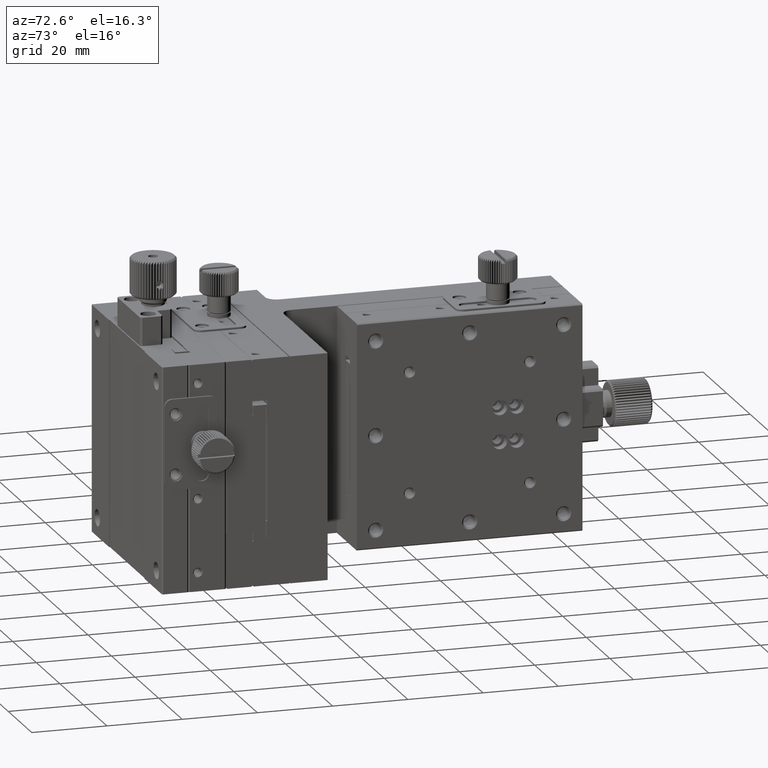
[diagram: clean part render]
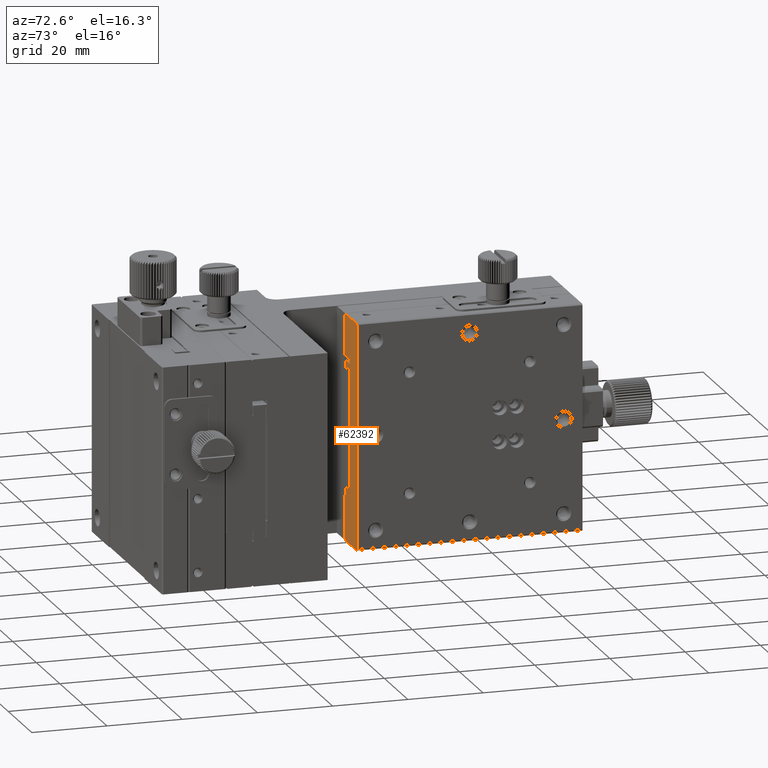
[diagram: same view with one face highlighted and labeled with its STEP entity id]
A machine part, auxiliary view. The second image highlights one B-rep face of the part: STEP entity #62392.
In plain terms, the highlighted planar face has unit normal (0, -1, 0).
Its self-contained STEP definition (entity closure, byte-faithful):
#34 = EDGE_CURVE ( 'NONE', #60580, #25279, #12182, .T. ) ;
#1041 = LINE ( 'NONE', #1652, #18351 ) ;
#1652 = CARTESIAN_POINT ( 'NONE',  ( 26.99999999999999645, 25.00000000000000711, 7.347880794884119933E-15 ) ) ;
#1874 = VECTOR ( 'NONE', #46125, 1000.000000000000000 ) ;
#2432 = DIRECTION ( 'NONE',  ( 1.227396053628219999E-16, 0.000000000000000000, 1.000000000000000000 ) ) ;
#2463 = VECTOR ( 'NONE', #2432, 1000.000000000000000 ) ;
#2490 = LINE ( 'NONE', #60452, #1874 ) ;
#2585 = LINE ( 'NONE', #17292, #58085 ) ;
#2967 = CARTESIAN_POINT ( 'NONE',  ( 37.00000000000000000, 25.00000000000000711, 7.347880794884119933E-15 ) ) ;
#3481 = CARTESIAN_POINT ( 'NONE',  ( 26.99999999999999645, 25.00000000000000711, -59.69999999999999574 ) ) ;
#3935 = ORIENTED_EDGE ( 'NONE', *, *, #18603, .T. ) ;
#3995 = VECTOR ( 'NONE', #8271, 999.9999999999998863 ) ;
#4728 = LINE ( 'NONE', #3481, #3995 ) ;
#4748 = CARTESIAN_POINT ( 'NONE',  ( 30.99999999999999289, 25.00000000000000711, -43.00000000000000000 ) ) ;
#4801 = ORIENTED_EDGE ( 'NONE', *, *, #42267, .T. ) ;
#4809 = ORIENTED_EDGE ( 'NONE', *, *, #62161, .T. ) ;
#4855 = LINE ( 'NONE', #24309, #28565 ) ;
#4996 = VECTOR ( 'NONE', #59641, 1000.000000000000000 ) ;
#6149 = CARTESIAN_POINT ( 'NONE',  ( 26.99999999999999645, 25.00000000000000711, -47.99999999999999289 ) ) ;
#7333 = DIRECTION ( 'NONE',  ( -0.7071067811865470176, -0.000000000000000000, 0.7071067811865480168 ) ) ;
#7435 = DIRECTION ( 'NONE',  ( 0.8659960399471574588, 0.000000000000000000, 0.5000508562094871934 ) ) ;
#7503 = CARTESIAN_POINT ( 'NONE',  ( 26.99999999999999645, 25.00000000000000711, -59.69999999999999574 ) ) ;
#7559 = CARTESIAN_POINT ( 'NONE',  ( 26.99999999999999645, 25.00000000000000711, 7.347880794884119933E-15 ) ) ;
#7769 = CARTESIAN_POINT ( 'NONE',  ( 30.80000000000000426, 25.00000000000000711, -12.80599999999998673 ) ) ;
#8271 = DIRECTION ( 'NONE',  ( 0.7071067811865431318, -0.000000000000000000, -0.7071067811865520136 ) ) ;
#8339 = ORIENTED_EDGE ( 'NONE', *, *, #34378, .T. ) ;
#8505 = VECTOR ( 'NONE', #49456, 1000.000000000000000 ) ;
#8549 = EDGE_LOOP ( 'NONE', ( #28143, #4801, #54453, #53428, #39034, #58429, #16312, #4809, #47194, #3935, #16232, #12271, #43871, #39023, #59701, #62694, #29594, #22457, #53627, #17290, #39284, #8339 ) ) ;
#8647 = VECTOR ( 'NONE', #44059, 1000.000000000000000 ) ;
#9627 = CARTESIAN_POINT ( 'NONE',  ( 27.29999999999999716, 25.00000000000000711, -59.99999999999999289 ) ) ;
#9825 = VERTEX_POINT ( 'NONE', #7769 ) ;
#9974 = DIRECTION ( 'NONE',  ( -0.7071067811865480168, -0.000000000000000000, -0.7071067811865470176 ) ) ;
#10093 = EDGE_CURVE ( 'NONE', #46523, #30129, #45315, .T. ) ;
#11251 = EDGE_CURVE ( 'NONE', #47284, #17008, #1041, .T. ) ;
#11288 = CARTESIAN_POINT ( 'NONE',  ( 31.00000000000000000, 25.00000000000000711, 7.347880794884119933E-15 ) ) ;
#11384 = CARTESIAN_POINT ( 'NONE',  ( 27.30000000000000782, 25.00000000000000711, 7.347880794884119933E-15 ) ) ;
#12085 = LINE ( 'NONE', #7559, #47455 ) ;
#12159 = EDGE_CURVE ( 'NONE', #26290, #41789, #4855, .T. ) ;
#12182 = LINE ( 'NONE', #50373, #38858 ) ;
#12271 = ORIENTED_EDGE ( 'NONE', *, *, #61861, .T. ) ;
#12388 = EDGE_CURVE ( 'NONE', #31154, #26290, #2585, .T. ) ;
#12695 = DIRECTION ( 'NONE',  ( -0.8659960399471572368, 0.000000000000000000, 0.5000508562094875264 ) ) ;
#13378 = CARTESIAN_POINT ( 'NONE',  ( 31.00000000000000000, 25.00000000000000711, -10.99999999999999289 ) ) ;
#14527 = CARTESIAN_POINT ( 'NONE',  ( 36.69999999999997442, 25.00000000000000711, -59.99999999999999289 ) ) ;
#14657 = VERTEX_POINT ( 'NONE', #9627 ) ;
#15354 = VECTOR ( 'NONE', #12695, 1000.000000000000114 ) ;
#15453 = LINE ( 'NONE', #25912, #42898 ) ;
#16232 = ORIENTED_EDGE ( 'NONE', *, *, #45340, .T. ) ;
#16312 = ORIENTED_EDGE ( 'NONE', *, *, #26776, .T. ) ;
#17008 = VERTEX_POINT ( 'NONE', #7503 ) ;
#17290 = ORIENTED_EDGE ( 'NONE', *, *, #57265, .T. ) ;
#17292 = CARTESIAN_POINT ( 'NONE',  ( 37.00000000000000000, 25.00000000000000711, -6.800957556051679009E-15 ) ) ;
#17475 = CARTESIAN_POINT ( 'NONE',  ( 30.80000000000000782, 25.00000000000000711, -43.00000000000000000 ) ) ;
#17567 = DIRECTION ( 'NONE',  ( 1.000000000000000000, 0.000000000000000000, 0.000000000000000000 ) ) ;
#18351 = VECTOR ( 'NONE', #35753, 1000.000000000000000 ) ;
#18603 = EDGE_CURVE ( 'NONE', #56611, #9825, #26270, .T. ) ;
#19080 = CARTESIAN_POINT ( 'NONE',  ( 27.30000000000000782, 25.00000000000000711, -47.99999999999999289 ) ) ;
#19372 = CARTESIAN_POINT ( 'NONE',  ( 37.00000000000000000, 25.00000000000000711, -12.19999999999999218 ) ) ;
#20310 = EDGE_CURVE ( 'NONE', #41789, #59390, #12085, .T. ) ;
#20618 = LINE ( 'NONE', #11384, #37901 ) ;
#20648 = LINE ( 'NONE', #44513, #29428 ) ;
#21277 = CARTESIAN_POINT ( 'NONE',  ( 31.00000000000000000, 25.00000000000000711, -16.99999999999999289 ) ) ;
#21463 = CARTESIAN_POINT ( 'NONE',  ( 30.80000000000000782, 25.00000000000000711, -16.99999999999999289 ) ) ;
#22457 = ORIENTED_EDGE ( 'NONE', *, *, #49927, .T. ) ;
#23558 = CARTESIAN_POINT ( 'NONE',  ( 30.80000000000000782, 25.00000000000000711, 7.347880794884119933E-15 ) ) ;
#24024 = VECTOR ( 'NONE', #25759, 1000.000000000000000 ) ;
#24112 = LINE ( 'NONE', #19372, #41336 ) ;
#24309 = CARTESIAN_POINT ( 'NONE',  ( 27.30000000000000782, 25.00000000000000711, -5.675066525144979984E-15 ) ) ;
#24358 = DIRECTION ( 'NONE',  ( 0.7071067811865699992, 0.000000000000000000, 0.7071067811865251462 ) ) ;
#25048 = CARTESIAN_POINT ( 'NONE',  ( 27.30000000000000426, 25.00000000000000711, -45.17300000000000182 ) ) ;
#25279 = VERTEX_POINT ( 'NONE', #19080 ) ;
#25401 = CARTESIAN_POINT ( 'NONE',  ( 36.99999999999999289, 25.00000000000000711, -0.3000000000000117018 ) ) ;
#25651 = VERTEX_POINT ( 'NONE', #37696 ) ;
#25690 = DIRECTION ( 'NONE',  ( 0.000000000000000000, 0.000000000000000000, -1.000000000000000000 ) ) ;
#25759 = DIRECTION ( 'NONE',  ( 1.000000000000000000, 0.000000000000000000, 0.000000000000000000 ) ) ;
#25912 = CARTESIAN_POINT ( 'NONE',  ( 31.00000000000000000, 25.00000000000000711, -10.99999999999999289 ) ) ;
#26270 = LINE ( 'NONE', #46007, #29882 ) ;
#26290 = VERTEX_POINT ( 'NONE', #45520 ) ;
#26776 = EDGE_CURVE ( 'NONE', #50479, #53260, #15453, .T. ) ;
#27655 = EDGE_CURVE ( 'NONE', #25651, #56611, #20618, .T. ) ;
#28143 = ORIENTED_EDGE ( 'NONE', *, *, #29339, .T. ) ;
#28490 = VERTEX_POINT ( 'NONE', #55726 ) ;
#28565 = VECTOR ( 'NONE', #9974, 1000.000000000000000 ) ;
#29339 = EDGE_CURVE ( 'NONE', #60416, #31918, #34976, .T. ) ;
#29428 = VECTOR ( 'NONE', #39430, 1000.000000000000000 ) ;
#29529 = VECTOR ( 'NONE', #24358, 1000.000000000000000 ) ;
#29594 = ORIENTED_EDGE ( 'NONE', *, *, #34, .T. ) ;
#29882 = VECTOR ( 'NONE', #7435, 1000.000000000000114 ) ;
#29997 = EDGE_CURVE ( 'NONE', #14657, #62943, #56039, .T. ) ;
#30129 = VERTEX_POINT ( 'NONE', #4748 ) ;
#30690 = LINE ( 'NONE', #45936, #8505 ) ;
#30878 = CARTESIAN_POINT ( 'NONE',  ( 36.69999999999997442, 25.00000000000000711, -59.99999999999999289 ) ) ;
#31154 = VERTEX_POINT ( 'NONE', #36983 ) ;
#31667 = DIRECTION ( 'NONE',  ( 0.000000000000000000, 0.000000000000000000, -1.000000000000000000 ) ) ;
#31772 = CARTESIAN_POINT ( 'NONE',  ( 36.99999999999999289, 25.00000000000000711, -59.69999999999999574 ) ) ;
#31918 = VERTEX_POINT ( 'NONE', #25401 ) ;
#33286 = AXIS2_PLACEMENT_3D ( 'NONE', #2967, #57079, #31667 ) ;
#33463 = LINE ( 'NONE', #23558, #55921 ) ;
#33496 = CARTESIAN_POINT ( 'NONE',  ( 36.99999999999998579, 25.00000000000000711, -59.69999999999999574 ) ) ;
#33906 = LINE ( 'NONE', #53268, #8647 ) ;
#34378 = EDGE_CURVE ( 'NONE', #62943, #60416, #43133, .T. ) ;
#34976 = LINE ( 'NONE', #31772, #2463 ) ;
#35482 = CARTESIAN_POINT ( 'NONE',  ( 27.30000000000000782, 25.00000000000000711, -14.82699999999999285 ) ) ;
#35753 = DIRECTION ( 'NONE',  ( 0.000000000000000000, 0.000000000000000000, -1.000000000000000000 ) ) ;
#36983 = CARTESIAN_POINT ( 'NONE',  ( 36.69999999999998863, 25.00000000000000711, -6.883899022246834298E-15 ) ) ;
#37047 = PLANE ( 'NONE',  #33286 ) ;
#37696 = CARTESIAN_POINT ( 'NONE',  ( 27.30000000000000782, 25.00000000000000711, -12.19999999999999218 ) ) ;
#37888 = EDGE_CURVE ( 'NONE', #49401, #28490, #20648, .T. ) ;
#37901 = VECTOR ( 'NONE', #25690, 1000.000000000000000 ) ;
#38858 = VECTOR ( 'NONE', #51011, 1000.000000000000000 ) ;
#39023 = ORIENTED_EDGE ( 'NONE', *, *, #43774, .T. ) ;
#39034 = ORIENTED_EDGE ( 'NONE', *, *, #20310, .T. ) ;
#39103 = EDGE_CURVE ( 'NONE', #28490, #60580, #56577, .T. ) ;
#39284 = ORIENTED_EDGE ( 'NONE', *, *, #29997, .T. ) ;
#39430 = DIRECTION ( 'NONE',  ( 0.000000000000000000, 0.000000000000000000, -1.000000000000000000 ) ) ;
#40421 = LINE ( 'NONE', #59194, #24024 ) ;
#41336 = VECTOR ( 'NONE', #56573, 1000.000000000000000 ) ;
#41789 = VERTEX_POINT ( 'NONE', #43208 ) ;
#42267 = EDGE_CURVE ( 'NONE', #31918, #31154, #45263, .T. ) ;
#42898 = VECTOR ( 'NONE', #54549, 1000.000000000000000 ) ;
#43133 = LINE ( 'NONE', #14527, #29529 ) ;
#43208 = CARTESIAN_POINT ( 'NONE',  ( 26.99999999999999645, 25.00000000000000711, -0.3000000000000161982 ) ) ;
#43774 = EDGE_CURVE ( 'NONE', #30129, #49401, #2490, .T. ) ;
#43871 = ORIENTED_EDGE ( 'NONE', *, *, #10093, .T. ) ;
#44059 = DIRECTION ( 'NONE',  ( 1.000000000000000000, 0.000000000000000000, 0.000000000000000000 ) ) ;
#44513 = CARTESIAN_POINT ( 'NONE',  ( 30.80000000000000782, 25.00000000000000711, 7.347880794884119933E-15 ) ) ;
#45263 = LINE ( 'NONE', #46194, #54565 ) ;
#45315 = LINE ( 'NONE', #11288, #4996 ) ;
#45340 = EDGE_CURVE ( 'NONE', #9825, #56605, #33463, .T. ) ;
#45520 = CARTESIAN_POINT ( 'NONE',  ( 27.30000000000000782, 25.00000000000000711, -5.886171093439968154E-15 ) ) ;
#45936 = CARTESIAN_POINT ( 'NONE',  ( 27.30000000000000782, 25.00000000000000711, -47.99999999999999289 ) ) ;
#46007 = CARTESIAN_POINT ( 'NONE',  ( 27.30000000000000782, 25.00000000000000711, -14.82699999999999285 ) ) ;
#46125 = DIRECTION ( 'NONE',  ( -1.000000000000000000, -0.000000000000000000, -0.000000000000000000 ) ) ;
#46194 = CARTESIAN_POINT ( 'NONE',  ( 37.00000000000000000, 25.00000000000000711, -0.3000000000000186962 ) ) ;
#46523 = VERTEX_POINT ( 'NONE', #21277 ) ;
#47194 = ORIENTED_EDGE ( 'NONE', *, *, #27655, .T. ) ;
#47284 = VERTEX_POINT ( 'NONE', #6149 ) ;
#47385 = CARTESIAN_POINT ( 'NONE',  ( 30.80000000000000782, 25.00000000000000711, -47.19400000000000261 ) ) ;
#47455 = VECTOR ( 'NONE', #50916, 1000.000000000000000 ) ;
#49401 = VERTEX_POINT ( 'NONE', #17475 ) ;
#49456 = DIRECTION ( 'NONE',  ( -1.000000000000000000, -0.000000000000000000, -0.000000000000000000 ) ) ;
#49927 = EDGE_CURVE ( 'NONE', #25279, #47284, #30690, .T. ) ;
#50373 = CARTESIAN_POINT ( 'NONE',  ( 27.30000000000000782, 25.00000000000000711, 7.347880794884119933E-15 ) ) ;
#50479 = VERTEX_POINT ( 'NONE', #13378 ) ;
#50679 = CARTESIAN_POINT ( 'NONE',  ( 37.00000000000000000, 25.00000000000000711, -59.99999999999999289 ) ) ;
#50916 = DIRECTION ( 'NONE',  ( 0.000000000000000000, 0.000000000000000000, -1.000000000000000000 ) ) ;
#51011 = DIRECTION ( 'NONE',  ( 0.000000000000000000, 0.000000000000000000, -1.000000000000000000 ) ) ;
#51101 = EDGE_CURVE ( 'NONE', #59390, #50479, #33906, .T. ) ;
#51304 = DIRECTION ( 'NONE',  ( -1.000000000000000000, -0.000000000000000000, -0.000000000000000000 ) ) ;
#51500 = VECTOR ( 'NONE', #17567, 1000.000000000000000 ) ;
#53260 = VERTEX_POINT ( 'NONE', #58145 ) ;
#53268 = CARTESIAN_POINT ( 'NONE',  ( 37.00000000000000000, 25.00000000000000711, -10.99999999999999289 ) ) ;
#53428 = ORIENTED_EDGE ( 'NONE', *, *, #12159, .T. ) ;
#53437 = DIRECTION ( 'NONE',  ( 0.000000000000000000, 0.000000000000000000, -1.000000000000000000 ) ) ;
#53627 = ORIENTED_EDGE ( 'NONE', *, *, #11251, .T. ) ;
#54453 = ORIENTED_EDGE ( 'NONE', *, *, #12388, .T. ) ;
#54549 = DIRECTION ( 'NONE',  ( -0.000000000000000000, -0.000000000000000000, -1.000000000000000000 ) ) ;
#54565 = VECTOR ( 'NONE', #7333, 1000.000000000000000 ) ;
#54792 = CARTESIAN_POINT ( 'NONE',  ( 26.99999999999999645, 25.00000000000000711, -10.99999999999999289 ) ) ;
#55726 = CARTESIAN_POINT ( 'NONE',  ( 30.80000000000000782, 25.00000000000000711, -47.19400000000000972 ) ) ;
#55921 = VECTOR ( 'NONE', #53437, 1000.000000000000000 ) ;
#56039 = LINE ( 'NONE', #50679, #51500 ) ;
#56115 = FACE_OUTER_BOUND ( 'NONE', #8549, .T. ) ;
#56573 = DIRECTION ( 'NONE',  ( -1.000000000000000000, -0.000000000000000000, -0.000000000000000000 ) ) ;
#56577 = LINE ( 'NONE', #47385, #15354 ) ;
#56605 = VERTEX_POINT ( 'NONE', #21463 ) ;
#56611 = VERTEX_POINT ( 'NONE', #35482 ) ;
#57079 = DIRECTION ( 'NONE',  ( 0.000000000000000000, -1.000000000000000000, 0.000000000000000000 ) ) ;
#57265 = EDGE_CURVE ( 'NONE', #17008, #14657, #4728, .T. ) ;
#58085 = VECTOR ( 'NONE', #51304, 1000.000000000000000 ) ;
#58145 = CARTESIAN_POINT ( 'NONE',  ( 31.00000000000000000, 25.00000000000000711, -12.19999999999999218 ) ) ;
#58429 = ORIENTED_EDGE ( 'NONE', *, *, #51101, .T. ) ;
#59194 = CARTESIAN_POINT ( 'NONE',  ( 30.80000000000000782, 25.00000000000000711, -16.99999999999999289 ) ) ;
#59390 = VERTEX_POINT ( 'NONE', #54792 ) ;
#59641 = DIRECTION ( 'NONE',  ( 0.000000000000000000, 0.000000000000000000, -1.000000000000000000 ) ) ;
#59701 = ORIENTED_EDGE ( 'NONE', *, *, #37888, .T. ) ;
#60416 = VERTEX_POINT ( 'NONE', #33496 ) ;
#60452 = CARTESIAN_POINT ( 'NONE',  ( 30.99999999999998934, 25.00000000000000711, -43.00000000000000000 ) ) ;
#60580 = VERTEX_POINT ( 'NONE', #25048 ) ;
#61861 = EDGE_CURVE ( 'NONE', #56605, #46523, #40421, .T. ) ;
#62161 = EDGE_CURVE ( 'NONE', #53260, #25651, #24112, .T. ) ;
#62392 = ADVANCED_FACE ( 'NONE', ( #56115 ), #37047, .T. ) ;
#62694 = ORIENTED_EDGE ( 'NONE', *, *, #39103, .T. ) ;
#62943 = VERTEX_POINT ( 'NONE', #30878 ) ;